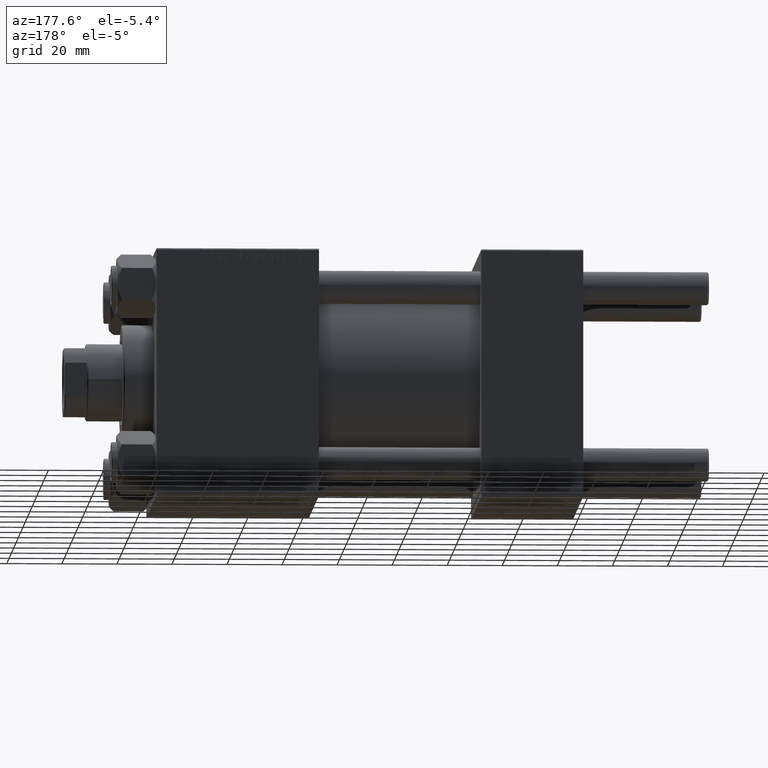
[diagram: clean part render]
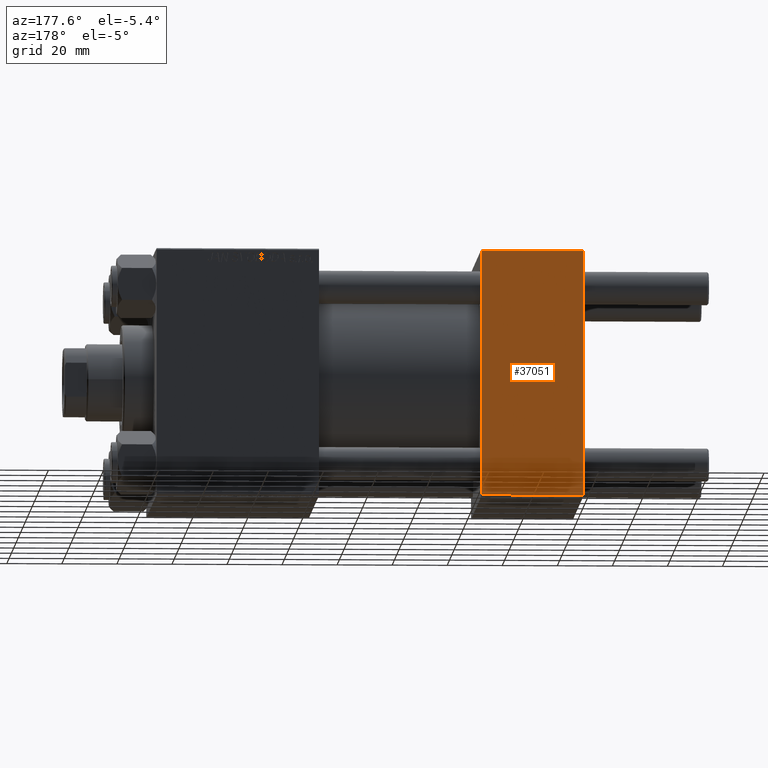
[diagram: same view with one face highlighted and labeled with its STEP entity id]
A machine part, auxiliary view. The second image highlights one B-rep face of the part: STEP entity #37051.
In plain terms, the highlighted planar face has unit normal (0, 1, 0).
Its self-contained STEP definition (entity closure, byte-faithful):
#296 = DIRECTION ( 'NONE',  ( 0.000000000000000000, -0.000000000000000000, 1.000000000000000000 ) ) ;
#540 = FACE_OUTER_BOUND ( 'NONE', #23358, .T. ) ;
#2999 = DIRECTION ( 'NONE',  ( 0.000000000000000000, 0.000000000000000000, -1.000000000000000000 ) ) ;
#4206 = LINE ( 'NONE', #30890, #14589 ) ;
#5091 = EDGE_CURVE ( 'NONE', #27571, #40946, #18097, .T. ) ;
#6393 = EDGE_CURVE ( 'NONE', #34367, #40946, #4206, .T. ) ;
#7100 = CARTESIAN_POINT ( 'NONE',  ( 0.000000000000000000, 44.99999999999998579, 44.50000000000001421 ) ) ;
#8613 = EDGE_CURVE ( 'NONE', #18743, #34367, #49423, .T. ) ;
#10665 = VECTOR ( 'NONE', #2999, 1000.000000000000000 ) ;
#14589 = VECTOR ( 'NONE', #38445, 1000.000000000000000 ) ;
#18097 = LINE ( 'NONE', #45541, #10665 ) ;
#18743 = VERTEX_POINT ( 'NONE', #23913 ) ;
#19168 = PLANE ( 'NONE',  #30161 ) ;
#22793 = CARTESIAN_POINT ( 'NONE',  ( 0.000000000000000000, 44.99999999999998579, -44.49999999999995737 ) ) ;
#23226 = DIRECTION ( 'NONE',  ( 0.000000000000000000, 0.000000000000000000, -1.000000000000000000 ) ) ;
#23358 = EDGE_LOOP ( 'NONE', ( #38540, #27645, #30742, #47379 ) ) ;
#23913 = CARTESIAN_POINT ( 'NONE',  ( 37.00000000000000000, 44.99999999999998579, 44.50000000000001421 ) ) ;
#24219 = CARTESIAN_POINT ( 'NONE',  ( 37.00000000000000000, 44.99999999999998579, 44.50000000000001421 ) ) ;
#25247 = VECTOR ( 'NONE', #28755, 1000.000000000000000 ) ;
#26266 = CARTESIAN_POINT ( 'NONE',  ( 37.00000000000000000, 44.99999999999998579, 45.00000000000001421 ) ) ;
#27465 = CARTESIAN_POINT ( 'NONE',  ( 37.00000000000000000, 44.99999999999998579, 45.00000000000001421 ) ) ;
#27571 = VERTEX_POINT ( 'NONE', #7100 ) ;
#27645 = ORIENTED_EDGE ( 'NONE', *, *, #6393, .T. ) ;
#28755 = DIRECTION ( 'NONE',  ( 1.000000000000000000, 0.000000000000000000, 0.000000000000000000 ) ) ;
#30161 = AXIS2_PLACEMENT_3D ( 'NONE', #27465, #35286, #296 ) ;
#30742 = ORIENTED_EDGE ( 'NONE', *, *, #5091, .F. ) ;
#30890 = CARTESIAN_POINT ( 'NONE',  ( 37.00000000000000000, 44.99999999999998579, -44.49999999999998579 ) ) ;
#34367 = VERTEX_POINT ( 'NONE', #48706 ) ;
#35286 = DIRECTION ( 'NONE',  ( -0.000000000000000000, 1.000000000000000000, 0.000000000000000000 ) ) ;
#36753 = EDGE_CURVE ( 'NONE', #27571, #18743, #47633, .T. ) ;
#37051 = ADVANCED_FACE ( 'NONE', ( #540 ), #19168, .T. ) ;
#38445 = DIRECTION ( 'NONE',  ( -1.000000000000000000, 0.000000000000000000, 0.000000000000000000 ) ) ;
#38540 = ORIENTED_EDGE ( 'NONE', *, *, #8613, .T. ) ;
#38839 = VECTOR ( 'NONE', #23226, 1000.000000000000000 ) ;
#40946 = VERTEX_POINT ( 'NONE', #22793 ) ;
#45541 = CARTESIAN_POINT ( 'NONE',  ( 0.000000000000000000, 44.99999999999998579, 45.00000000000001421 ) ) ;
#47379 = ORIENTED_EDGE ( 'NONE', *, *, #36753, .T. ) ;
#47633 = LINE ( 'NONE', #24219, #25247 ) ;
#48706 = CARTESIAN_POINT ( 'NONE',  ( 37.00000000000000000, 44.99999999999998579, -44.49999999999995737 ) ) ;
#49423 = LINE ( 'NONE', #26266, #38839 ) ;